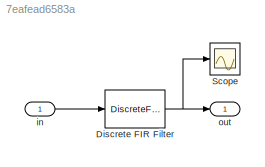
MODEL slx_7eafead6583a
KIND model
CONFIG AbsTol = auto
CONFIG FixedStep = auto
CONFIG MaxStep = auto
CONFIG MinStep = auto
CONFIG RelTol = 1e-3
CONFIG SampleTimeConstraint = Unconstrained
CONFIG Solver = ode45
CONFIG SolverMode = Auto
CONFIG SolverName = ode45
CONFIG StartTime = 0.0
CONFIG StopTime = 1
BLOCK [DiscreteFir] Discrete FIR Filter
  Coefficients = [0 0.2 1 0.3 -0.4 -0.1 0.1 -0.05 -0.02 -0.01]
  Ports = [1, 1]
  SampleTime = 0.02
BLOCK [Scope] Scope
  Floating = off
  NumInputPorts = 1
  Ports = [1]
BLOCK [Inport] in
  IconDisplay = Port number
BLOCK [Outport] out
  IconDisplay = Port number
NET Discrete FIR Filter:1 -> Scope:1, out:1
LINE in:1 -> Discrete FIR Filter:1
note: NET lines group one-source signal fan-out (src -> all destinations, sorted); 1:1 wires keep LINE
